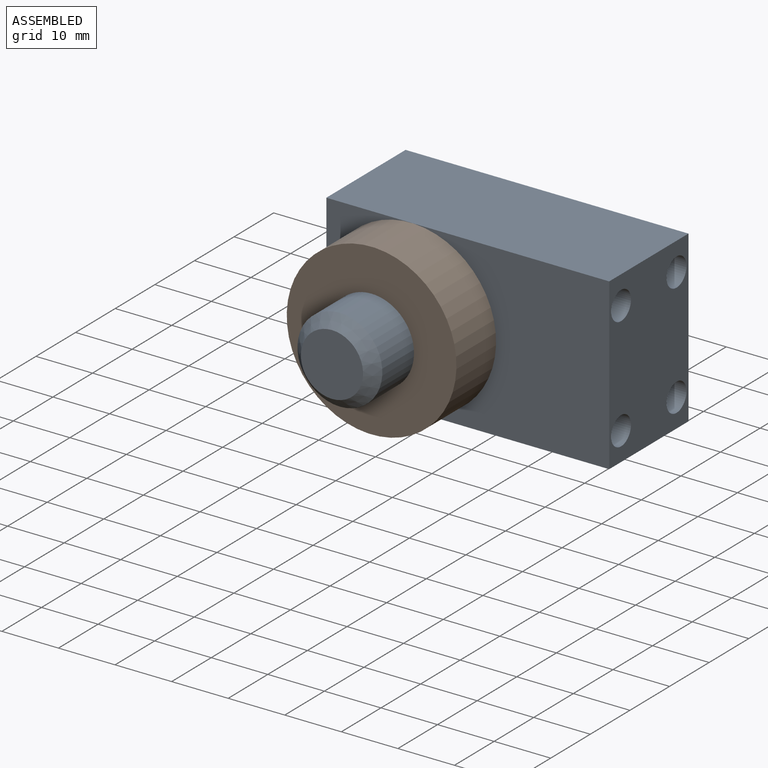
[diagram: assembled view]
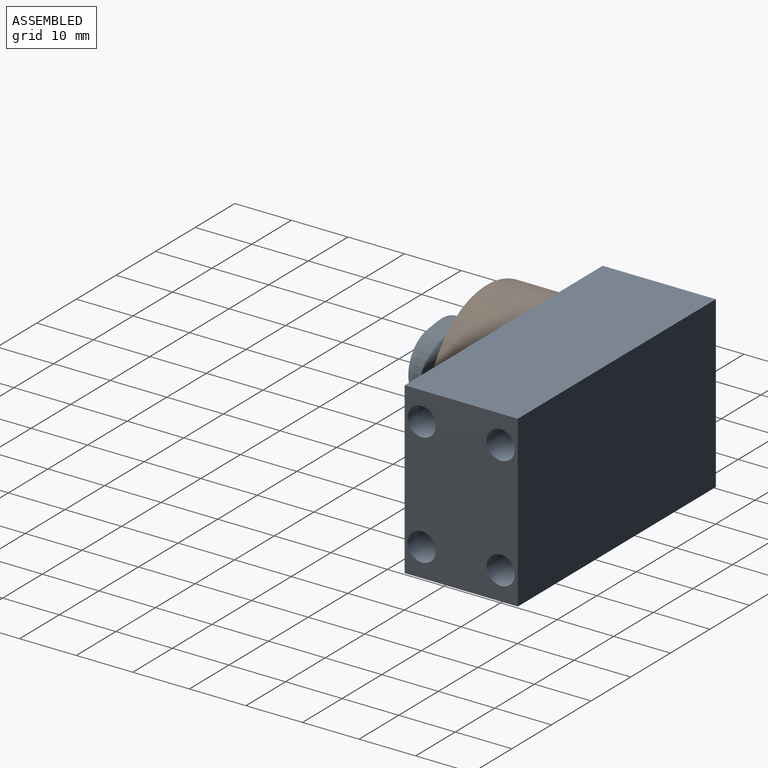
[diagram: assembled view, second angle]
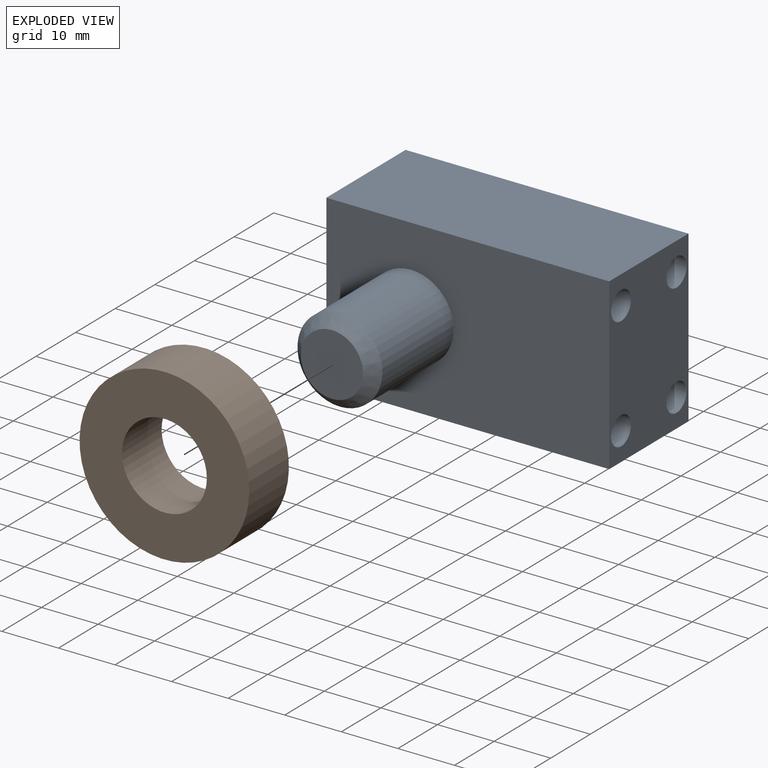
[diagram: exploded view]
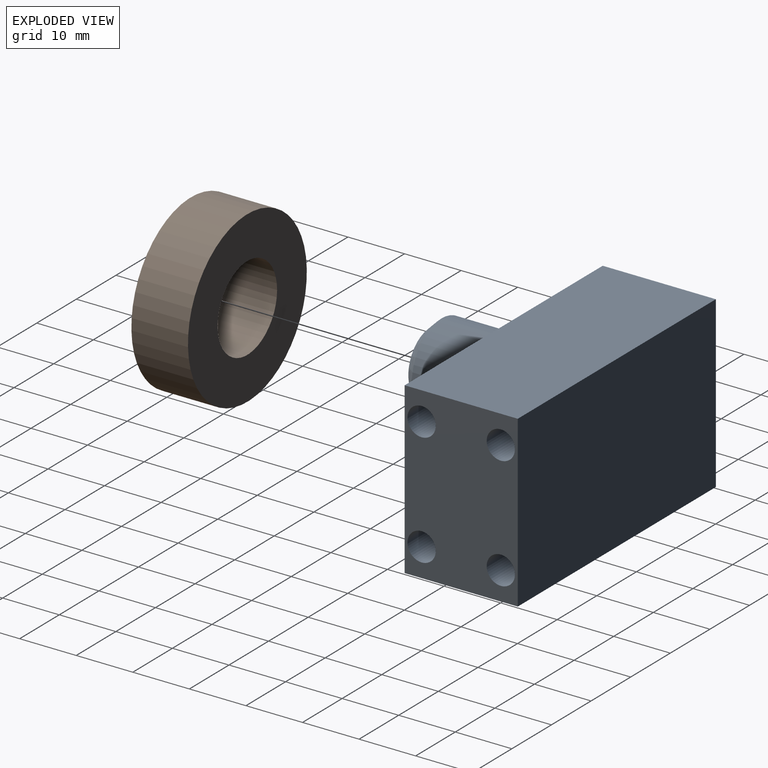
[diagram: exploded view, second angle]
ASSEMBLY  parts=2 mates=2
PART A: 17 faces, bbox 50x40x30 mm
  f0: plane 30x20mm, normal (-1,0,0), area 600mm2, adj f1,f3,f4,f5
  f1: plane 50x20mm, normal (0,0,-1), area 1000mm2, adj f0,f2,f4,f5
  f2: plane 30x20mm, normal (1,0,0), area 521.5mm2, adj f1,f3,f4,f5,f10,f12,f14,f16
  f3: plane 50x20mm, normal (0,0,1), area 1000mm2, adj f0,f2,f4,f5
  f4: plane 50x30mm, normal (0,-1,0), area 1323.3mm2, adj f0,f1,f2,f3,f6
  f5: plane 50x30mm, normal (0,1,0), area 1500mm2, adj f0,f1,f2,f3
  f6: cylinder r=7.5mm len=18mm, axis (0,1,0), area 848.2mm2, adj f4,f8
  f7: plane 11x11mm, normal (0,-1,0), area 95mm2, adj f8
  f8: cone r=5.5mm half-angle=45deg, axis (0,1,0), area 115.5mm2, adj f6,f7
  f9: cone r=0mm half-angle=59deg, axis (1,0,0), area 22.9mm2, adj f10
  f10: cylinder r=2.5mm len=15mm, axis (1,0,0), area 235.6mm2, adj f2,f9
  f11: cone r=0mm half-angle=59deg, axis (1,0,0), area 22.9mm2, adj f12
  f12: cylinder r=2.5mm len=15mm, axis (1,0,0), area 235.6mm2, adj f2,f11
  f13: cone r=0mm half-angle=59deg, axis (1,0,0), area 22.9mm2, adj f14
  f14: cylinder r=2.5mm len=15mm, axis (1,0,0), area 235.6mm2, adj f2,f13
  f15: cone r=0mm half-angle=59deg, axis (1,0,0), area 22.9mm2, adj f16
  f16: cylinder r=2.5mm len=15mm, axis (1,0,0), area 235.6mm2, adj f2,f15
PART B: 4 faces, bbox 30x10x30 mm
  f0: cylinder r=7.5mm len=15mm, axis (0,1,0), area 471.2mm2, adj f2,f3
  f1: cylinder r=15mm len=30mm, axis (0,1,0), area 942.5mm2, adj f2,f3
  f2: plane 30x30mm, normal (0,-1,0), area 530.1mm2, adj f0,f1
  f3: plane 30x30mm, normal (0,1,0), area 530.1mm2, adj f0,f1
PLACE A t=(-28.52,-5.92,-16.21)mm fixed
PLACE B rot(axis=(0,-1,0),12.9deg) t=(-13.52,-25.92,-1.21)mm
MATE cylindrical A.f6 <-> B.f0  axis (0,1,0) through (-13.52,-34.92,-1.21)mm
MATE planar A.f4 <-> B.f1  axis (0,-1,0) through (-28.52,-25.92,-1.21)mm
